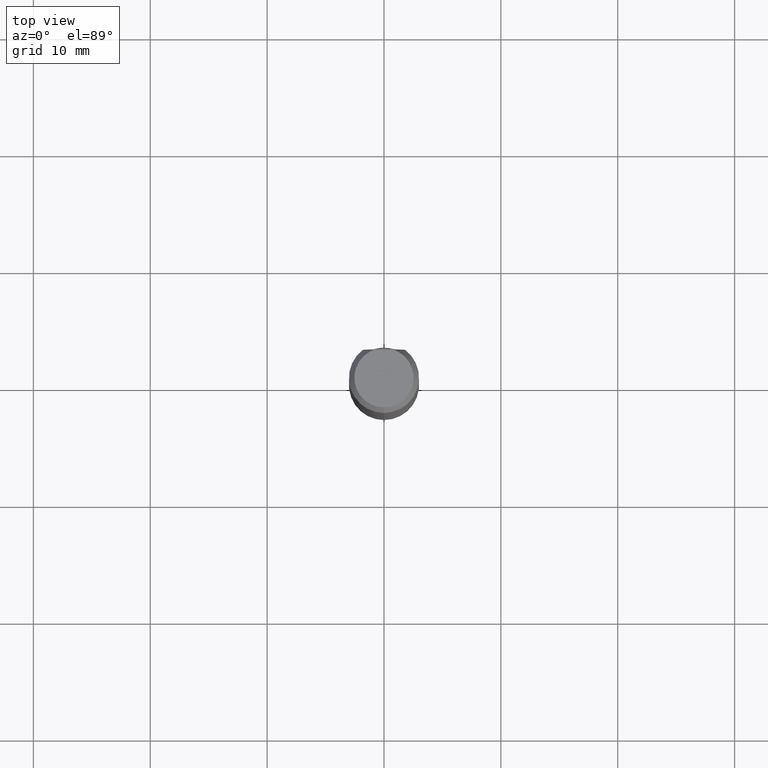
[diagram: clean part render]
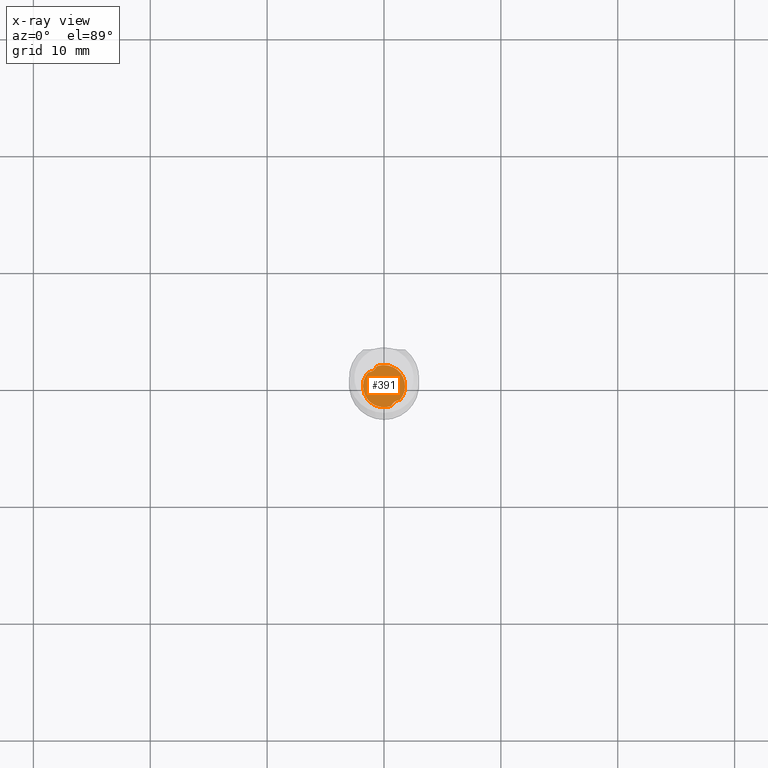
[diagram: x-ray — body ghosted, one internal face saturated and labeled with its STEP entity id]
A machine part, top view, then the same camera in x-ray: the body is ghosted and one INTERNAL B-rep face — a face not visible from any outside direction — is saturated and labeled: STEP entity #391.
In plain terms, the highlighted planar face has unit normal (-0, 0, 1).
Its self-contained STEP definition (entity closure, byte-faithful):
#303=VERTEX_POINT('',#836);
#391=ADVANCED_FACE('',(#936),#937,.T.);
#419=EDGE_CURVE('',#519,#303,#967,.T.);
#471=EDGE_CURVE('',#571,#645,#1025,.T.);
#519=VERTEX_POINT('',#1076);
#529=VERTEX_POINT('',#1086);
#545=VERTEX_POINT('',#1104);
#571=VERTEX_POINT('',#1132);
#593=EDGE_CURVE('',#571,#303,#1155,.T.);
#645=VERTEX_POINT('',#1210);
#659=EDGE_CURVE('',#529,#545,#1227,.T.);
#733=EDGE_CURVE('',#529,#519,#1305,.T.);
#767=EDGE_CURVE('',#645,#545,#1343,.T.);
#836=CARTESIAN_POINT('',(-1.36218435057644,1.17647516125273,-42.0));
#936=FACE_OUTER_BOUND('',#2601,.T.);
#937=PLANE('',#2602);
#967=CIRCLE('',#2819,1.7999);
#1025=CIRCLE('',#3183,1.7999);
#1076=CARTESIAN_POINT('',(2.23646924384965E-016,-1.7999,-42.0));
#1086=CARTESIAN_POINT('',(0.61651160528528,-1.69102142226187,-42.0));
#1104=CARTESIAN_POINT('',(1.36218435057645,-1.17647516125272,-42.0));
#1132=CARTESIAN_POINT('',(-0.616511605285278,1.69102142226187,-42.0));
#1155=B_SPLINE_CURVE_WITH_KNOTS('',3,(#3632,#3633,#3634,#3635,#3636,#3637,#3638,#3639,#3640,#3641,#3642,#3643),.UNSPECIFIED.,.F.,.F.,(4,2,2,2,2,4),(0.0,0.395731459812609,0.754899251727813,1.11344236256471,1.36309425819205,1.6246896977623),.UNSPECIFIED.);
#1210=CARTESIAN_POINT('',(-2.23646924370769E-016,1.7999,-42.0));
#1227=B_SPLINE_CURVE_WITH_KNOTS('',3,(#4471,#4472,#4473,#4474,#4475,#4476,#4477,#4478,#4479,#4480,#4481,#4482),.UNSPECIFIED.,.F.,.F.,(4,2,2,2,2,4),(0.0,0.395731459812612,0.754899251727717,1.1134423625645,1.3630942581918,1.62468969776199),.UNSPECIFIED.);
#1305=CIRCLE('',#4828,1.7999);
#1343=CIRCLE('',#5266,1.7999);
#2601=EDGE_LOOP('',(#5557,#5558,#5559,#5560,#5561,#5562));
#2602=AXIS2_PLACEMENT_3D('',#5563,#5564,#5565);
#2819=AXIS2_PLACEMENT_3D('',#5586,#5587,#5588);
#3183=AXIS2_PLACEMENT_3D('',#5673,#5674,#5675);
#3632=CARTESIAN_POINT('',(-0.554376291141574,1.8499,-42.0));
#3633=CARTESIAN_POINT('',(-0.59243790848526,1.72360000094481,-42.0));
#3634=CARTESIAN_POINT('',(-0.652643457735021,1.60596378219404,-41.9999999999934));
#3635=CARTESIAN_POINT('',(-0.811974679552828,1.41195060961569,-41.9999999999934));
#3636=CARTESIAN_POINT('',(-0.904288509086672,1.33616417580513,-42.0000000000003));
#3637=CARTESIAN_POINT('',(-1.11512382324025,1.22455808677535,-42.0000000000003));
#3638=CARTESIAN_POINT('',(-1.22979348108259,1.19066640908653,-42.0));
#3639=CARTESIAN_POINT('',(-1.43099192433364,1.16895290825092,-42.0));
#3640=CARTESIAN_POINT('',(-1.51431868520721,1.1703842049054,-42.0));
#3641=CARTESIAN_POINT('',(-1.68312131599488,1.1921952736277,-42.0));
#3642=CARTESIAN_POINT('',(-1.7679664474883,1.21339975205665,-42.0));
#3643=CARTESIAN_POINT('',(-1.8499,1.24308582442074,-42.0));
#4471=CARTESIAN_POINT('',(0.554376291141574,-1.8499,-42.0));
#4472=CARTESIAN_POINT('',(0.59243790848526,-1.72360000094481,-42.0));
#4473=CARTESIAN_POINT('',(0.652643457735022,-1.60596378219404,-41.9999999999934));
#4474=CARTESIAN_POINT('',(0.811974679552807,-1.41195060961571,-41.9999999999934));
#4475=CARTESIAN_POINT('',(0.904288509086653,-1.33616417580513,-42.0000000000003));
#4476=CARTESIAN_POINT('',(1.11512382324025,-1.22455808677533,-42.0000000000003));
#4477=CARTESIAN_POINT('',(1.22979348108261,-1.19066640908653,-42.0));
#4478=CARTESIAN_POINT('',(1.43099192433363,-1.16895290825091,-42.0));
#4479=CARTESIAN_POINT('',(1.5143186852072,-1.17038420490539,-42.0));
#4480=CARTESIAN_POINT('',(1.68312131599488,-1.1921952736277,-42.0));
#4481=CARTESIAN_POINT('',(1.76796644748831,-1.21339975205665,-42.0));
#4482=CARTESIAN_POINT('',(1.8499,-1.24308582442074,-42.0));
#4828=AXIS2_PLACEMENT_3D('',#5918,#5919,#5920);
#5266=AXIS2_PLACEMENT_3D('',#5966,#5967,#5968);
#5557=ORIENTED_EDGE('',*,*,#659,.T.);
#5558=ORIENTED_EDGE('',*,*,#767,.F.);
#5559=ORIENTED_EDGE('',*,*,#471,.F.);
#5560=ORIENTED_EDGE('',*,*,#593,.T.);
#5561=ORIENTED_EDGE('',*,*,#419,.F.);
#5562=ORIENTED_EDGE('',*,*,#733,.F.);
#5563=CARTESIAN_POINT('',(0.0,0.89995,-42.0));
#5564=DIRECTION('',(-0.0,0.0,1.0));
#5565=DIRECTION('',(0.0,-1.0,0.0));
#5586=CARTESIAN_POINT('',(0.0,0.0,-42.0));
#5587=DIRECTION('',(0.0,0.0,-1.0));
#5588=DIRECTION('',(0.0,1.0,0.0));
#5673=CARTESIAN_POINT('',(0.0,0.0,-42.0));
#5674=DIRECTION('',(0.0,0.0,-1.0));
#5675=DIRECTION('',(0.0,1.0,0.0));
#5918=CARTESIAN_POINT('',(0.0,0.0,-42.0));
#5919=DIRECTION('',(0.0,0.0,-1.0));
#5920=DIRECTION('',(0.0,1.0,0.0));
#5966=CARTESIAN_POINT('',(0.0,0.0,-42.0));
#5967=DIRECTION('',(0.0,0.0,-1.0));
#5968=DIRECTION('',(0.0,1.0,0.0));